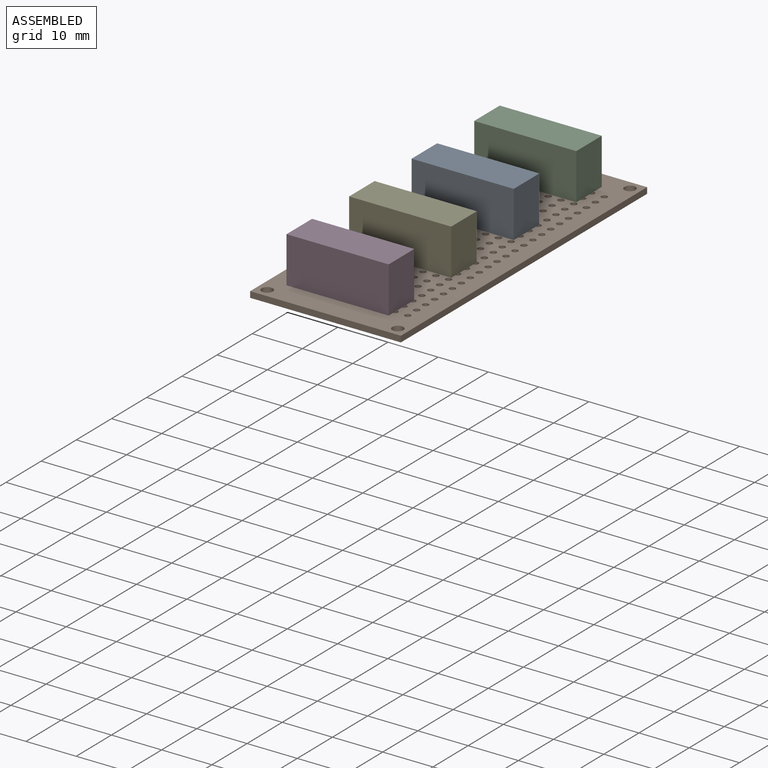
[diagram: assembled view]
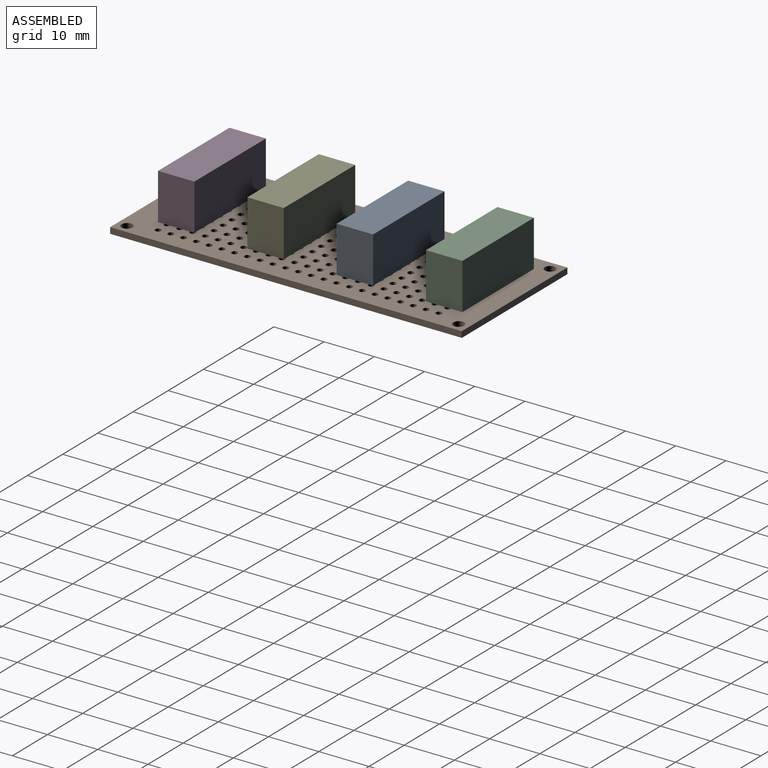
[diagram: assembled view, second angle]
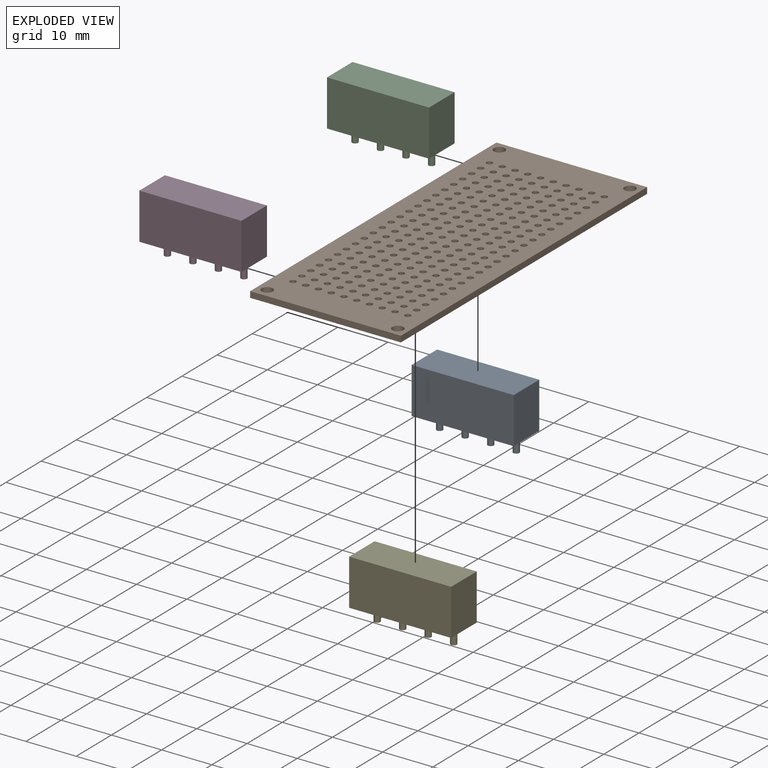
[diagram: exploded view]
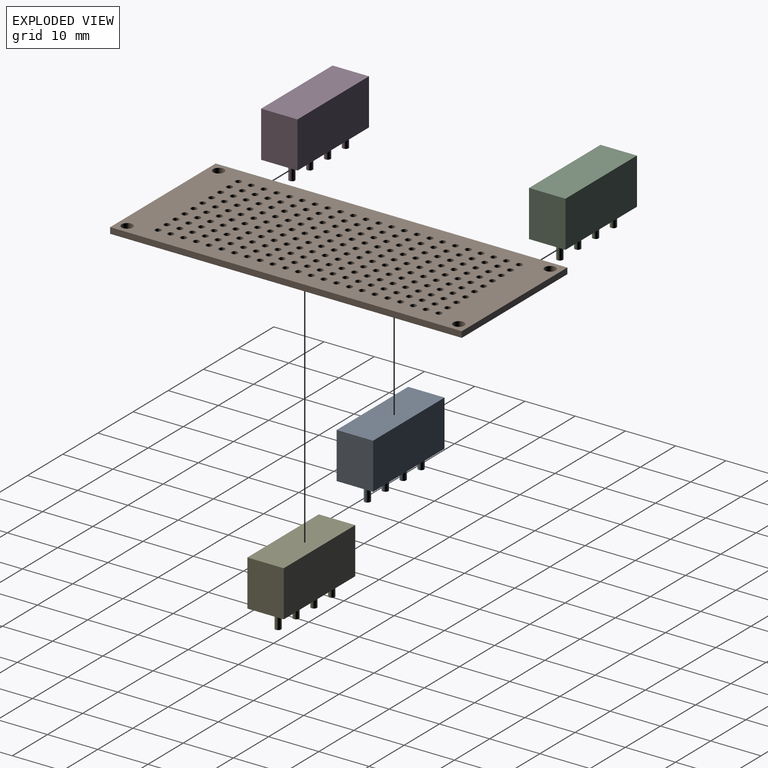
[diagram: exploded view, second angle]
ASSEMBLY  parts=5 mates=4
PART A: 14 faces, bbox 20.3x7.3x12.6 mm
  f0: plane 20.32x9.2mm, normal (0,-1,0), area 186.9mm2, adj f1,f3,f4,f5
  f1: plane 9.2x7.25mm, normal (1,0,0), area 66.7mm2, adj f0,f2,f4,f5
  f2: plane 20.32x9.2mm, normal (0,1,0), area 186.9mm2, adj f1,f3,f4,f5
  f3: plane 9.2x7.25mm, normal (-1,0,0), area 66.7mm2, adj f0,f2,f4,f5
  f4: plane 20.32x7.25mm, normal (0,0,1), area 147.3mm2, adj f0,f1,f2,f3
  f5: plane 20.32x7.25mm, normal (0,0,-1), area 142.8mm2, adj f0,f1,f2,f3,f6,f8,f10,f12
  f6: cylinder r=0.6mm len=3.4mm, axis (0,0,1), area 12.8mm2, adj f5,f7
  f7: plane 1.2x1.2mm, normal (0,0,-1), area 1.1mm2, adj f6
  f8: cylinder r=0.6mm len=3.4mm, axis (0,0,1), area 12.8mm2, adj f5,f9
  f9: plane 1.2x1.2mm, normal (0,0,-1), area 1.1mm2, adj f8
  f10: cylinder r=0.6mm len=3.4mm, axis (0,0,1), area 12.8mm2, adj f5,f11
  f11: plane 1.2x1.2mm, normal (0,0,-1), area 1.1mm2, adj f10
  f12: cylinder r=0.6mm len=3.4mm, axis (0,0,1), area 12.8mm2, adj f5,f13
  f13: plane 1.2x1.2mm, normal (0,0,-1), area 1.1mm2, adj f12
PART B: 240 faces, bbox 70x30x1.2 mm
  f0: plane 70x1.2mm, normal (0,-1,0), area 84mm2, adj f1,f237,f238,f239
  f1: plane 30x1.2mm, normal (1,0,0), area 36mm2, adj f0,f2,f238,f239
  f2: plane 70x1.2mm, normal (0,1,0), area 84mm2, adj f1,f237,f238,f239
  f3: cylinder r=1.1mm len=2.2mm, axis (0,0,-1), area 8.3mm2, adj f238,f239
  f4: cylinder r=1.1mm len=2.2mm, axis (0,0,-1), area 8.3mm2, adj f238,f239
  f5: cylinder r=1.1mm len=2.2mm, axis (0,0,-1), area 8.3mm2, adj f238,f239
  f6: cylinder r=1.1mm len=2.2mm, axis (0,0,-1), area 8.3mm2, adj f238,f239
  f7: cylinder r=0.6mm len=1.2mm, axis (0,0,-1), area 4.5mm2, adj f238,f239
  f8: cylinder r=0.6mm len=1.2mm, axis (0,0,-1), area 4.5mm2, adj f238,f239
  f9: cylinder r=0.6mm len=1.2mm, axis (0,0,-1), area 4.5mm2, adj f238,f239
  f10: cylinder r=0.6mm len=1.2mm, axis (0,0,-1), area 4.5mm2, adj f238,f239
  f11: cylinder r=0.6mm len=1.2mm, axis (0,0,-1), area 4.5mm2, adj f238,f239
  f12: cylinder r=0.6mm len=1.2mm, axis (0,0,-1), area 4.5mm2, adj f238,f239
  f13: cylinder r=0.6mm len=1.2mm, axis (0,0,-1), area 4.5mm2, adj f238,f239
  f14: cylinder r=0.6mm len=1.2mm, axis (0,0,-1), area 4.5mm2, adj f238,f239
  f15: cylinder r=0.6mm len=1.2mm, axis (0,0,-1), area 4.5mm2, adj f238,f239
  f16: cylinder r=0.6mm len=1.2mm, axis (0,0,-1), area 4.5mm2, adj f238,f239
  f17: cylinder r=0.6mm len=1.2mm, axis (0,0,-1), area 4.5mm2, adj f238,f239
  f18: cylinder r=0.6mm len=1.2mm, axis (0,0,-1), area 4.5mm2, adj f238,f239
  f19: cylinder r=0.6mm len=1.2mm, axis (0,0,-1), area 4.5mm2, adj f238,f239
  f20: cylinder r=0.6mm len=1.2mm, axis (0,0,-1), area 4.5mm2, adj f238,f239
  f21: cylinder r=0.6mm len=1.2mm, axis (0,0,-1), area 4.5mm2, adj f238,f239
  f22: cylinder r=0.6mm len=1.2mm, axis (0,0,-1), area 4.5mm2, adj f238,f239
  f23: cylinder r=0.6mm len=1.2mm, axis (0,0,-1), area 4.5mm2, adj f238,f239
  f24: cylinder r=0.6mm len=1.2mm, axis (0,0,-1), area 4.5mm2, adj f238,f239
  f25: cylinder r=0.6mm len=1.2mm, axis (0,0,-1), area 4.5mm2, adj f238,f239
  f26: cylinder r=0.6mm len=1.2mm, axis (0,0,-1), area 4.5mm2, adj f238,f239
  f27: cylinder r=0.6mm len=1.2mm, axis (0,0,-1), area 4.5mm2, adj f238,f239
  f28: cylinder r=0.6mm len=1.2mm, axis (0,0,-1), area 4.5mm2, adj f238,f239
  f29: cylinder r=0.6mm len=1.2mm, axis (0,0,-1), area 4.5mm2, adj f238,f239
  f30: cylinder r=0.6mm len=1.2mm, axis (0,0,-1), area 4.5mm2, adj f238,f239
  f31: cylinder r=0.6mm len=1.2mm, axis (0,0,-1), area 4.5mm2, adj f238,f239
  f32: cylinder r=0.6mm len=1.2mm, axis (0,0,-1), area 4.5mm2, adj f238,f239
  f33: cylinder r=0.6mm len=1.2mm, axis (0,0,-1), area 4.5mm2, adj f238,f239
  f34: cylinder r=0.6mm len=1.2mm, axis (0,0,-1), area 4.5mm2, adj f238,f239
  f35: cylinder r=0.6mm len=1.2mm, axis (0,0,-1), area 4.5mm2, adj f238,f239
  f36: cylinder r=0.6mm len=1.2mm, axis (0,0,-1), area 4.5mm2, adj f238,f239
  f37: cylinder r=0.6mm len=1.2mm, axis (0,0,-1), area 4.5mm2, adj f238,f239
  f38: cylinder r=0.6mm len=1.2mm, axis (0,0,-1), area 4.5mm2, adj f238,f239
  f39: cylinder r=0.6mm len=1.2mm, axis (0,0,-1), area 4.5mm2, adj f238,f239
  f40: cylinder r=0.6mm len=1.2mm, axis (0,0,-1), area 4.5mm2, adj f238,f239
  f41: cylinder r=0.6mm len=1.2mm, axis (0,0,-1), area 4.5mm2, adj f238,f239
  f42: cylinder r=0.6mm len=1.2mm, axis (0,0,-1), area 4.5mm2, adj f238,f239
  f43: cylinder r=0.6mm len=1.2mm, axis (0,0,-1), area 4.5mm2, adj f238,f239
  f44: cylinder r=0.6mm len=1.2mm, axis (0,0,-1), area 4.5mm2, adj f238,f239
  f45: cylinder r=0.6mm len=1.2mm, axis (0,0,-1), area 4.5mm2, adj f238,f239
  f46: cylinder r=0.6mm len=1.2mm, axis (0,0,-1), area 4.5mm2, adj f238,f239
  f47: cylinder r=0.6mm len=1.2mm, axis (0,0,-1), area 4.5mm2, adj f238,f239
  f48: cylinder r=0.6mm len=1.2mm, axis (0,0,-1), area 4.5mm2, adj f238,f239
  f49: cylinder r=0.6mm len=1.2mm, axis (0,0,-1), area 4.5mm2, adj f238,f239
  f50: cylinder r=0.6mm len=1.2mm, axis (0,0,-1), area 4.5mm2, adj f238,f239
  f51: cylinder r=0.6mm len=1.2mm, axis (0,0,-1), area 4.5mm2, adj f238,f239
  f52: cylinder r=0.6mm len=1.2mm, axis (0,0,-1), area 4.5mm2, adj f238,f239
  f53: cylinder r=0.6mm len=1.2mm, axis (0,0,-1), area 4.5mm2, adj f238,f239
  f54: cylinder r=0.6mm len=1.2mm, axis (0,0,-1), area 4.5mm2, adj f238,f239
  f55: cylinder r=0.6mm len=1.2mm, axis (0,0,-1), area 4.5mm2, adj f238,f239
  f56: cylinder r=0.6mm len=1.2mm, axis (0,0,-1), area 4.5mm2, adj f238,f239
  f57: cylinder r=0.6mm len=1.2mm, axis (0,0,-1), area 4.5mm2, adj f238,f239
  f58: cylinder r=0.6mm len=1.2mm, axis (0,0,-1), area 4.5mm2, adj f238,f239
  f59: cylinder r=0.6mm len=1.2mm, axis (0,0,-1), area 4.5mm2, adj f238,f239
  f60: cylinder r=0.6mm len=1.2mm, axis (0,0,-1), area 4.5mm2, adj f238,f239
  f61: cylinder r=0.6mm len=1.2mm, axis (0,0,-1), area 4.5mm2, adj f238,f239
  f62: cylinder r=0.6mm len=1.2mm, axis (0,0,-1), area 4.5mm2, adj f238,f239
  f63: cylinder r=0.6mm len=1.2mm, axis (0,0,-1), area 4.5mm2, adj f238,f239
  f64: cylinder r=0.6mm len=1.2mm, axis (0,0,-1), area 4.5mm2, adj f238,f239
  f65: cylinder r=0.6mm len=1.2mm, axis (0,0,-1), area 4.5mm2, adj f238,f239
  f66: cylinder r=0.6mm len=1.2mm, axis (0,0,-1), area 4.5mm2, adj f238,f239
  f67: cylinder r=0.6mm len=1.2mm, axis (0,0,-1), area 4.5mm2, adj f238,f239
  f68: cylinder r=0.6mm len=1.2mm, axis (0,0,-1), area 4.5mm2, adj f238,f239
  f69: cylinder r=0.6mm len=1.2mm, axis (0,0,-1), area 4.5mm2, adj f238,f239
  f70: cylinder r=0.6mm len=1.2mm, axis (0,0,-1), area 4.5mm2, adj f238,f239
  f71: cylinder r=0.6mm len=1.2mm, axis (0,0,-1), area 4.5mm2, adj f238,f239
  f72: cylinder r=0.6mm len=1.2mm, axis (0,0,-1), area 4.5mm2, adj f238,f239
  f73: cylinder r=0.6mm len=1.2mm, axis (0,0,-1), area 4.5mm2, adj f238,f239
  f74: cylinder r=0.6mm len=1.2mm, axis (0,0,-1), area 4.5mm2, adj f238,f239
  f75: cylinder r=0.6mm len=1.2mm, axis (0,0,-1), area 4.5mm2, adj f238,f239
  f76: cylinder r=0.6mm len=1.2mm, axis (0,0,-1), area 4.5mm2, adj f238,f239
  f77: cylinder r=0.6mm len=1.2mm, axis (0,0,-1), area 4.5mm2, adj f238,f239
  f78: cylinder r=0.6mm len=1.2mm, axis (0,0,-1), area 4.5mm2, adj f238,f239
  f79: cylinder r=0.6mm len=1.2mm, axis (0,0,-1), area 4.5mm2, adj f238,f239
  f80: cylinder r=0.6mm len=1.2mm, axis (0,0,-1), area 4.5mm2, adj f238,f239
  f81: cylinder r=0.6mm len=1.2mm, axis (0,0,-1), area 4.5mm2, adj f238,f239
  f82: cylinder r=0.6mm len=1.2mm, axis (0,0,-1), area 4.5mm2, adj f238,f239
  f83: cylinder r=0.6mm len=1.2mm, axis (0,0,-1), area 4.5mm2, adj f238,f239
  f84: cylinder r=0.6mm len=1.2mm, axis (0,0,-1), area 4.5mm2, adj f238,f239
  f85: cylinder r=0.6mm len=1.2mm, axis (0,0,-1), area 4.5mm2, adj f238,f239
  f86: cylinder r=0.6mm len=1.2mm, axis (0,0,-1), area 4.5mm2, adj f238,f239
  f87: cylinder r=0.6mm len=1.2mm, axis (0,0,-1), area 4.5mm2, adj f238,f239
  f88: cylinder r=0.6mm len=1.2mm, axis (0,0,-1), area 4.5mm2, adj f238,f239
  f89: cylinder r=0.6mm len=1.2mm, axis (0,0,-1), area 4.5mm2, adj f238,f239
  f90: cylinder r=0.6mm len=1.2mm, axis (0,0,-1), area 4.5mm2, adj f238,f239
  f91: cylinder r=0.6mm len=1.2mm, axis (0,0,-1), area 4.5mm2, adj f238,f239
  f92: cylinder r=0.6mm len=1.2mm, axis (0,0,-1), area 4.5mm2, adj f238,f239
  f93: cylinder r=0.6mm len=1.2mm, axis (0,0,-1), area 4.5mm2, adj f238,f239
  f94: cylinder r=0.6mm len=1.2mm, axis (0,0,-1), area 4.5mm2, adj f238,f239
  f95: cylinder r=0.6mm len=1.2mm, axis (0,0,-1), area 4.5mm2, adj f238,f239
  f96: cylinder r=0.6mm len=1.2mm, axis (0,0,-1), area 4.5mm2, adj f238,f239
  f97: cylinder r=0.6mm len=1.2mm, axis (0,0,-1), area 4.5mm2, adj f238,f239
  f98: cylinder r=0.6mm len=1.2mm, axis (0,0,-1), area 4.5mm2, adj f238,f239
  f99: cylinder r=0.6mm len=1.2mm, axis (0,0,-1), area 4.5mm2, adj f238,f239
  f100: cylinder r=0.6mm len=1.2mm, axis (0,0,-1), area 4.5mm2, adj f238,f239
  f101: cylinder r=0.6mm len=1.2mm, axis (0,0,-1), area 4.5mm2, adj f238,f239
  f102: cylinder r=0.6mm len=1.2mm, axis (0,0,-1), area 4.5mm2, adj f238,f239
  f103: cylinder r=0.6mm len=1.2mm, axis (0,0,-1), area 4.5mm2, adj f238,f239
  f104: cylinder r=0.6mm len=1.2mm, axis (0,0,-1), area 4.5mm2, adj f238,f239
  f105: cylinder r=0.6mm len=1.2mm, axis (0,0,-1), area 4.5mm2, adj f238,f239
  f106: cylinder r=0.6mm len=1.2mm, axis (0,0,-1), area 4.5mm2, adj f238,f239
  f107: cylinder r=0.6mm len=1.2mm, axis (0,0,-1), area 4.5mm2, adj f238,f239
  f108: cylinder r=0.6mm len=1.2mm, axis (0,0,-1), area 4.5mm2, adj f238,f239
  f109: cylinder r=0.6mm len=1.2mm, axis (0,0,-1), area 4.5mm2, adj f238,f239
  f110: cylinder r=0.6mm len=1.2mm, axis (0,0,-1), area 4.5mm2, adj f238,f239
  f111: cylinder r=0.6mm len=1.2mm, axis (0,0,-1), area 4.5mm2, adj f238,f239
  f112: cylinder r=0.6mm len=1.2mm, axis (0,0,-1), area 4.5mm2, adj f238,f239
  f113: cylinder r=0.6mm len=1.2mm, axis (0,0,-1), area 4.5mm2, adj f238,f239
  f114: cylinder r=0.6mm len=1.2mm, axis (0,0,-1), area 4.5mm2, adj f238,f239
  f115: cylinder r=0.6mm len=1.2mm, axis (0,0,-1), area 4.5mm2, adj f238,f239
  f116: cylinder r=0.6mm len=1.2mm, axis (0,0,-1), area 4.5mm2, adj f238,f239
  f117: cylinder r=0.6mm len=1.2mm, axis (0,0,-1), area 4.5mm2, adj f238,f239
  f118: cylinder r=0.6mm len=1.2mm, axis (0,0,-1), area 4.5mm2, adj f238,f239
  f119: cylinder r=0.6mm len=1.2mm, axis (0,0,-1), area 4.5mm2, adj f238,f239
  f120: cylinder r=0.6mm len=1.2mm, axis (0,0,-1), area 4.5mm2, adj f238,f239
  f121: cylinder r=0.6mm len=1.2mm, axis (0,0,-1), area 4.5mm2, adj f238,f239
  f122: cylinder r=0.6mm len=1.2mm, axis (0,0,-1), area 4.5mm2, adj f238,f239
  f123: cylinder r=0.6mm len=1.2mm, axis (0,0,-1), area 4.5mm2, adj f238,f239
  f124: cylinder r=0.6mm len=1.2mm, axis (0,0,-1), area 4.5mm2, adj f238,f239
  f125: cylinder r=0.6mm len=1.2mm, axis (0,0,-1), area 4.5mm2, adj f238,f239
  f126: cylinder r=0.6mm len=1.2mm, axis (0,0,-1), area 4.5mm2, adj f238,f239
  f127: cylinder r=0.6mm len=1.2mm, axis (0,0,-1), area 4.5mm2, adj f238,f239
  f128: cylinder r=0.6mm len=1.2mm, axis (0,0,-1), area 4.5mm2, adj f238,f239
  f129: cylinder r=0.6mm len=1.2mm, axis (0,0,-1), area 4.5mm2, adj f238,f239
  f130: cylinder r=0.6mm len=1.2mm, axis (0,0,-1), area 4.5mm2, adj f238,f239
  f131: cylinder r=0.6mm len=1.2mm, axis (0,0,-1), area 4.5mm2, adj f238,f239
  f132: cylinder r=0.6mm len=1.2mm, axis (0,0,-1), area 4.5mm2, adj f238,f239
  f133: cylinder r=0.6mm len=1.2mm, axis (0,0,-1), area 4.5mm2, adj f238,f239
  f134: cylinder r=0.6mm len=1.2mm, axis (0,0,-1), area 4.5mm2, adj f238,f239
  f135: cylinder r=0.6mm len=1.2mm, axis (0,0,-1), area 4.5mm2, adj f238,f239
  f136: cylinder r=0.6mm len=1.2mm, axis (0,0,-1), area 4.5mm2, adj f238,f239
  f137: cylinder r=0.6mm len=1.2mm, axis (0,0,-1), area 4.5mm2, adj f238,f239
  f138: cylinder r=0.6mm len=1.2mm, axis (0,0,-1), area 4.5mm2, adj f238,f239
  f139: cylinder r=0.6mm len=1.2mm, axis (0,0,-1), area 4.5mm2, adj f238,f239
  f140: cylinder r=0.6mm len=1.2mm, axis (0,0,-1), area 4.5mm2, adj f238,f239
  f141: cylinder r=0.6mm len=1.2mm, axis (0,0,-1), area 4.5mm2, adj f238,f239
  f142: cylinder r=0.6mm len=1.2mm, axis (0,0,-1), area 4.5mm2, adj f238,f239
  f143: cylinder r=0.6mm len=1.2mm, axis (0,0,-1), area 4.5mm2, adj f238,f239
  f144: cylinder r=0.6mm len=1.2mm, axis (0,0,-1), area 4.5mm2, adj f238,f239
  f145: cylinder r=0.6mm len=1.2mm, axis (0,0,-1), area 4.5mm2, adj f238,f239
  f146: cylinder r=0.6mm len=1.2mm, axis (0,0,-1), area 4.5mm2, adj f238,f239
  f147: cylinder r=0.6mm len=1.2mm, axis (0,0,-1), area 4.5mm2, adj f238,f239
  f148: cylinder r=0.6mm len=1.2mm, axis (0,0,-1), area 4.5mm2, adj f238,f239
  f149: cylinder r=0.6mm len=1.2mm, axis (0,0,-1), area 4.5mm2, adj f238,f239
  f150: cylinder r=0.6mm len=1.2mm, axis (0,0,-1), area 4.5mm2, adj f238,f239
  f151: cylinder r=0.6mm len=1.2mm, axis (0,0,-1), area 4.5mm2, adj f238,f239
  f152: cylinder r=0.6mm len=1.2mm, axis (0,0,-1), area 4.5mm2, adj f238,f239
  f153: cylinder r=0.6mm len=1.2mm, axis (0,0,-1), area 4.5mm2, adj f238,f239
  f154: cylinder r=0.6mm len=1.2mm, axis (0,0,-1), area 4.5mm2, adj f238,f239
  f155: cylinder r=0.6mm len=1.2mm, axis (0,0,-1), area 4.5mm2, adj f238,f239
  f156: cylinder r=0.6mm len=1.2mm, axis (0,0,-1), area 4.5mm2, adj f238,f239
  f157: cylinder r=0.6mm len=1.2mm, axis (0,0,-1), area 4.5mm2, adj f238,f239
  f158: cylinder r=0.6mm len=1.2mm, axis (0,0,-1), area 4.5mm2, adj f238,f239
  f159: cylinder r=0.6mm len=1.2mm, axis (0,0,-1), area 4.5mm2, adj f238,f239
  f160: cylinder r=0.6mm len=1.2mm, axis (0,0,-1), area 4.5mm2, adj f238,f239
  f161: cylinder r=0.6mm len=1.2mm, axis (0,0,-1), area 4.5mm2, adj f238,f239
  f162: cylinder r=0.6mm len=1.2mm, axis (0,0,-1), area 4.5mm2, adj f238,f239
  f163: cylinder r=0.6mm len=1.2mm, axis (0,0,-1), area 4.5mm2, adj f238,f239
  f164: cylinder r=0.6mm len=1.2mm, axis (0,0,-1), area 4.5mm2, adj f238,f239
  f165: cylinder r=0.6mm len=1.2mm, axis (0,0,-1), area 4.5mm2, adj f238,f239
  f166: cylinder r=0.6mm len=1.2mm, axis (0,0,-1), area 4.5mm2, adj f238,f239
  f167: cylinder r=0.6mm len=1.2mm, axis (0,0,-1), area 4.5mm2, adj f238,f239
  f168: cylinder r=0.6mm len=1.2mm, axis (0,0,-1), area 4.5mm2, adj f238,f239
  f169: cylinder r=0.6mm len=1.2mm, axis (0,0,-1), area 4.5mm2, adj f238,f239
  f170: cylinder r=0.6mm len=1.2mm, axis (0,0,-1), area 4.5mm2, adj f238,f239
  f171: cylinder r=0.6mm len=1.2mm, axis (0,0,-1), area 4.5mm2, adj f238,f239
  f172: cylinder r=0.6mm len=1.2mm, axis (0,0,-1), area 4.5mm2, adj f238,f239
  f173: cylinder r=0.6mm len=1.2mm, axis (0,0,-1), area 4.5mm2, adj f238,f239
  f174: cylinder r=0.6mm len=1.2mm, axis (0,0,-1), area 4.5mm2, adj f238,f239
  f175: cylinder r=0.6mm len=1.2mm, axis (0,0,-1), area 4.5mm2, adj f238,f239
  f176: cylinder r=0.6mm len=1.2mm, axis (0,0,-1), area 4.5mm2, adj f238,f239
  f177: cylinder r=0.6mm len=1.2mm, axis (0,0,-1), area 4.5mm2, adj f238,f239
  f178: cylinder r=0.6mm len=1.2mm, axis (0,0,-1), area 4.5mm2, adj f238,f239
  f179: cylinder r=0.6mm len=1.2mm, axis (0,0,-1), area 4.5mm2, adj f238,f239
  f180: cylinder r=0.6mm len=1.2mm, axis (0,0,-1), area 4.5mm2, adj f238,f239
  f181: cylinder r=0.6mm len=1.2mm, axis (0,0,-1), area 4.5mm2, adj f238,f239
  f182: cylinder r=0.6mm len=1.2mm, axis (0,0,-1), area 4.5mm2, adj f238,f239
  f183: cylinder r=0.6mm len=1.2mm, axis (0,0,-1), area 4.5mm2, adj f238,f239
  f184: cylinder r=0.6mm len=1.2mm, axis (0,0,-1), area 4.5mm2, adj f238,f239
  f185: cylinder r=0.6mm len=1.2mm, axis (0,0,-1), area 4.5mm2, adj f238,f239
  f186: cylinder r=0.6mm len=1.2mm, axis (0,0,-1), area 4.5mm2, adj f238,f239
  f187: cylinder r=0.6mm len=1.2mm, axis (0,0,-1), area 4.5mm2, adj f238,f239
  f188: cylinder r=0.6mm len=1.2mm, axis (0,0,-1), area 4.5mm2, adj f238,f239
  f189: cylinder r=0.6mm len=1.2mm, axis (0,0,-1), area 4.5mm2, adj f238,f239
  f190: cylinder r=0.6mm len=1.2mm, axis (0,0,-1), area 4.5mm2, adj f238,f239
  f191: cylinder r=0.6mm len=1.2mm, axis (0,0,-1), area 4.5mm2, adj f238,f239
  f192: cylinder r=0.6mm len=1.2mm, axis (0,0,-1), area 4.5mm2, adj f238,f239
  f193: cylinder r=0.6mm len=1.2mm, axis (0,0,-1), area 4.5mm2, adj f238,f239
  f194: cylinder r=0.6mm len=1.2mm, axis (0,0,-1), area 4.5mm2, adj f238,f239
  f195: cylinder r=0.6mm len=1.2mm, axis (0,0,-1), area 4.5mm2, adj f238,f239
  f196: cylinder r=0.6mm len=1.2mm, axis (0,0,-1), area 4.5mm2, adj f238,f239
  f197: cylinder r=0.6mm len=1.2mm, axis (0,0,-1), area 4.5mm2, adj f238,f239
  f198: cylinder r=0.6mm len=1.2mm, axis (0,0,-1), area 4.5mm2, adj f238,f239
  f199: cylinder r=0.6mm len=1.2mm, axis (0,0,-1), area 4.5mm2, adj f238,f239
  f200: cylinder r=0.6mm len=1.2mm, axis (0,0,-1), area 4.5mm2, adj f238,f239
  f201: cylinder r=0.6mm len=1.2mm, axis (0,0,-1), area 4.5mm2, adj f238,f239
  f202: cylinder r=0.6mm len=1.2mm, axis (0,0,-1), area 4.5mm2, adj f238,f239
  f203: cylinder r=0.6mm len=1.2mm, axis (0,0,-1), area 4.5mm2, adj f238,f239
  f204: cylinder r=0.6mm len=1.2mm, axis (0,0,-1), area 4.5mm2, adj f238,f239
  f205: cylinder r=0.6mm len=1.2mm, axis (0,0,-1), area 4.5mm2, adj f238,f239
  f206: cylinder r=0.6mm len=1.2mm, axis (0,0,-1), area 4.5mm2, adj f238,f239
  f207: cylinder r=0.6mm len=1.2mm, axis (0,0,-1), area 4.5mm2, adj f238,f239
  f208: cylinder r=0.6mm len=1.2mm, axis (0,0,-1), area 4.5mm2, adj f238,f239
  f209: cylinder r=0.6mm len=1.2mm, axis (0,0,-1), area 4.5mm2, adj f238,f239
  f210: cylinder r=0.6mm len=1.2mm, axis (0,0,-1), area 4.5mm2, adj f238,f239
  f211: cylinder r=0.6mm len=1.2mm, axis (0,0,-1), area 4.5mm2, adj f238,f239
  f212: cylinder r=0.6mm len=1.2mm, axis (0,0,-1), area 4.5mm2, adj f238,f239
  f213: cylinder r=0.6mm len=1.2mm, axis (0,0,-1), area 4.5mm2, adj f238,f239
  f214: cylinder r=0.6mm len=1.2mm, axis (0,0,-1), area 4.5mm2, adj f238,f239
  f215: cylinder r=0.6mm len=1.2mm, axis (0,0,-1), area 4.5mm2, adj f238,f239
  f216: cylinder r=0.6mm len=1.2mm, axis (0,0,-1), area 4.5mm2, adj f238,f239
  f217: cylinder r=0.6mm len=1.2mm, axis (0,0,-1), area 4.5mm2, adj f238,f239
  f218: cylinder r=0.6mm len=1.2mm, axis (0,0,-1), area 4.5mm2, adj f238,f239
  f219: cylinder r=0.6mm len=1.2mm, axis (0,0,-1), area 4.5mm2, adj f238,f239
  f220: cylinder r=0.6mm len=1.2mm, axis (0,0,-1), area 4.5mm2, adj f238,f239
  f221: cylinder r=0.6mm len=1.2mm, axis (0,0,-1), area 4.5mm2, adj f238,f239
  f222: cylinder r=0.6mm len=1.2mm, axis (0,0,-1), area 4.5mm2, adj f238,f239
  f223: cylinder r=0.6mm len=1.2mm, axis (0,0,-1), area 4.5mm2, adj f238,f239
  f224: cylinder r=0.6mm len=1.2mm, axis (0,0,-1), area 4.5mm2, adj f238,f239
  f225: cylinder r=0.6mm len=1.2mm, axis (0,0,-1), area 4.5mm2, adj f238,f239
  f226: cylinder r=0.6mm len=1.2mm, axis (0,0,-1), area 4.5mm2, adj f238,f239
  f227: cylinder r=0.6mm len=1.2mm, axis (0,0,-1), area 4.5mm2, adj f238,f239
  f228: cylinder r=0.6mm len=1.2mm, axis (0,0,-1), area 4.5mm2, adj f238,f239
  f229: cylinder r=0.6mm len=1.2mm, axis (0,0,-1), area 4.5mm2, adj f238,f239
  f230: cylinder r=0.6mm len=1.2mm, axis (0,0,-1), area 4.5mm2, adj f238,f239
  f231: cylinder r=0.6mm len=1.2mm, axis (0,0,-1), area 4.5mm2, adj f238,f239
  f232: cylinder r=0.6mm len=1.2mm, axis (0,0,-1), area 4.5mm2, adj f238,f239
  f233: cylinder r=0.6mm len=1.2mm, axis (0,0,-1), area 4.5mm2, adj f238,f239
  f234: cylinder r=0.6mm len=1.2mm, axis (0,0,-1), area 4.5mm2, adj f238,f239
  f235: cylinder r=0.6mm len=1.2mm, axis (0,0,-1), area 4.5mm2, adj f238,f239
  f236: cylinder r=0.6mm len=1.2mm, axis (0,0,-1), area 4.5mm2, adj f238,f239
  f237: plane 30x1.2mm, normal (-1,0,0), area 36mm2, adj f0,f2,f238,f239
  f238: plane 70x30mm, normal (0,0,1), area 1824.7mm2, adj f0,f1,f2,f3,f4,f5,f6,f7
  f239: plane 70x30mm, normal (0,0,-1), area 1824.7mm2, adj f0,f1,f2,f3,f4,f5,f6,f7
PART C: same geometry as A
PART D: same geometry as A
PART E: same geometry as A
PLACE A t=(-30.48,-17.78,0)mm
PLACE B rot(axis=(0,0,-1),90deg) t=(-54.37,-58.59,-1.2)mm
PLACE C t=(-30.48,0,0)mm
PLACE D t=(-30.48,-53.34,0)mm
PLACE E t=(-30.48,-35.56,0)mm
MATE fastened B.f15 <-> C.f12  axis (0,0,1) through (-48.26,4.35,0)mm
MATE fastened B.f155 <-> E.f12  axis (0,0,1) through (-48.26,-31.21,0)mm
MATE fastened D.f12 <-> B.f225  axis (0,0,-1) through (-48.26,-48.99,0)mm
MATE fastened B.f85 <-> A.f12  axis (0,0,1) through (-48.26,-13.43,0)mm
